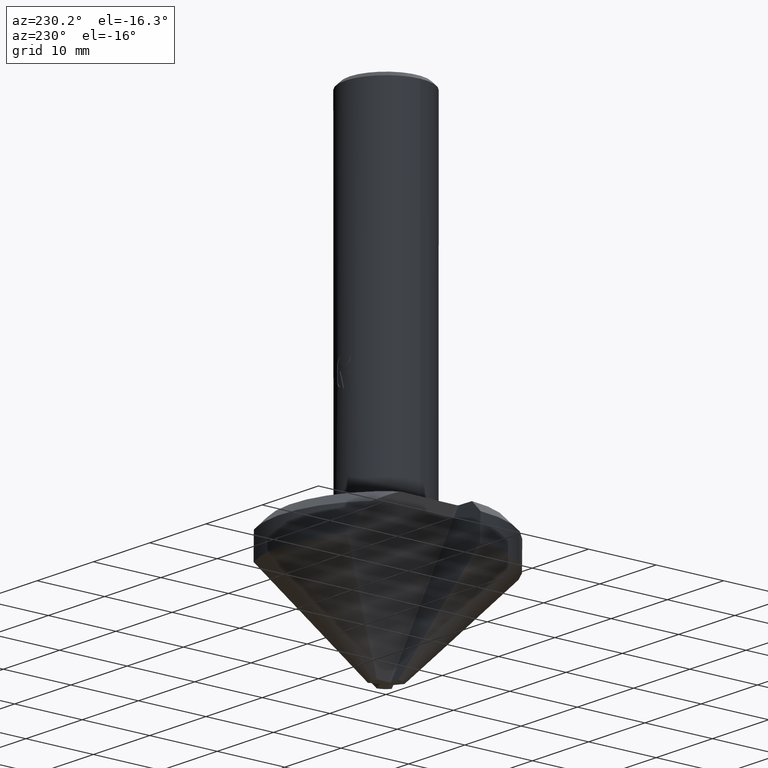
[diagram: clean part render]
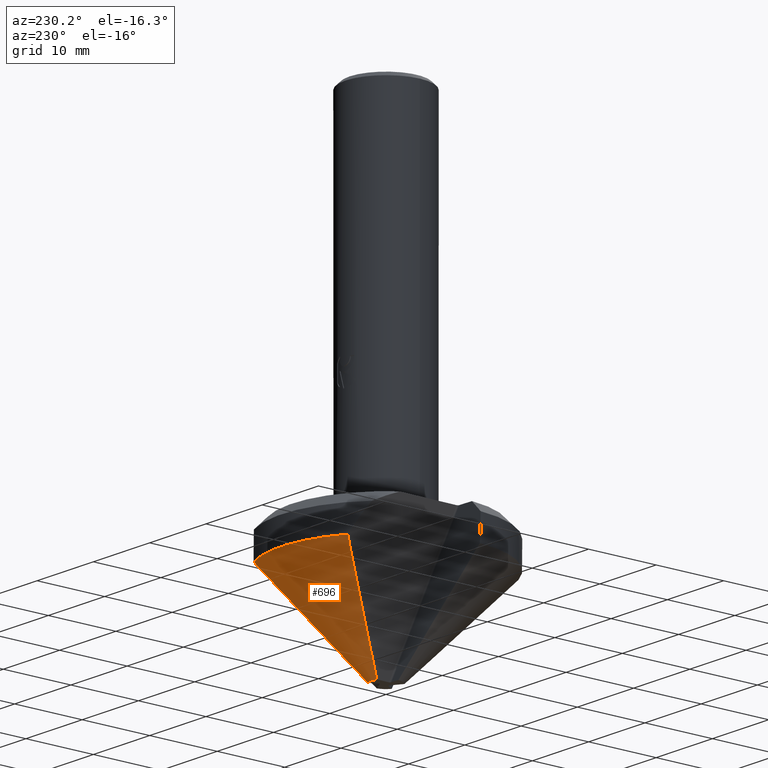
[diagram: same view with one face highlighted and labeled with its STEP entity id]
A machine part, auxiliary view. The second image highlights one B-rep face of the part: STEP entity #696.
In plain terms, the highlighted conical surface has half-angle 45 deg.
Its self-contained STEP definition (entity closure, byte-faithful):
#420=VERTEX_POINT('',#1178);
#452=VERTEX_POINT('',#1212);
#550=EDGE_CURVE('',#1064,#932,#1319,.T.);
#656=EDGE_CURVE('',#1064,#420,#1434,.T.);
#696=ADVANCED_FACE('',(#1477),#1478,.T.);
#722=EDGE_CURVE('',#452,#932,#1507,.T.);
#932=VERTEX_POINT('',#1735);
#984=EDGE_CURVE('',#420,#452,#1793,.T.);
#1064=VERTEX_POINT('',#1879);
#1178=CARTESIAN_POINT('',(-8.62602678301135,12.8779525522798,-57.6));
#1212=CARTESIAN_POINT('',(6.86001409771061,13.8992879882105,-57.6));
#1319=CIRCLE('',#2328,2.1);
#1434=(B_SPLINE_CURVE(2,(#2570,#2571,#2572),.UNSPECIFIED.,.F.,.F.)B_SPLINE_CURVE_WITH_KNOTS((3,3),(0.0,18.9968479206675),.UNSPECIFIED.)RATIONAL_B_SPLINE_CURVE((1.0,1.46457814446262,1.0))BOUNDED_CURVE()REPRESENTATION_ITEM('')GEOMETRIC_REPRESENTATION_ITEM()CURVE());
#1477=FACE_OUTER_BOUND('',#2635,.T.);
#1478=CONICAL_SURFACE('',#2636,8.8,0.785398163397448);
#1507=(B_SPLINE_CURVE(2,(#2689,#2690,#2691),.UNSPECIFIED.,.F.,.F.)B_SPLINE_CURVE_WITH_KNOTS((3,3),(0.0,18.9512372147147),.UNSPECIFIED.)RATIONAL_B_SPLINE_CURVE((1.0,1.54199393858499,1.0))BOUNDED_CURVE()REPRESENTATION_ITEM('')GEOMETRIC_REPRESENTATION_ITEM()CURVE());
#1735=CARTESIAN_POINT('',(0.985581936125735,1.85435386244984,-71.0));
#1793=CIRCLE('',#3392,15.5);
#1879=CARTESIAN_POINT('',(-0.734623106566587,1.967315147936,-71.0));
#2328=AXIS2_PLACEMENT_3D('',#3986,#3987,#3988);
#2570=CARTESIAN_POINT('',(-0.734623106566588,1.967315147936,-71.0));
#2571=CARTESIAN_POINT('',(-1.77734749505873,3.46640128626992,-69.2308646202038));
#2572=CARTESIAN_POINT('',(-8.62602678301136,12.8779525522798,-57.6));
#2635=EDGE_LOOP('',(#4168,#4169,#4170,#4171));
#2636=AXIS2_PLACEMENT_3D('',#4172,#4173,#4174);
#2689=CARTESIAN_POINT('',(6.86001409771061,13.8992879882105,-57.6));
#2690=CARTESIAN_POINT('',(1.68718254033752,3.29284901421316,-69.4004933701625));
#2691=CARTESIAN_POINT('',(0.985581936125735,1.85435386244984,-71.0));
#3392=AXIS2_PLACEMENT_3D('',#4506,#4507,#4508);
#3986=CARTESIAN_POINT('',(0.0,0.0,-71.0));
#3987=DIRECTION('',(0.0,0.0,-1.0));
#3988=DIRECTION('',(-1.0,0.0,0.0));
#4168=ORIENTED_EDGE('',*,*,#656,.T.);
#4169=ORIENTED_EDGE('',*,*,#984,.T.);
#4170=ORIENTED_EDGE('',*,*,#722,.T.);
#4171=ORIENTED_EDGE('',*,*,#550,.F.);
#4172=CARTESIAN_POINT('',(0.0,0.0,-64.3));
#4173=DIRECTION('',(-0.0,-0.0,1.0));
#4174=DIRECTION('',(-1.0,0.0,0.0));
#4506=CARTESIAN_POINT('',(0.0,0.0,-57.6));
#4507=DIRECTION('',(0.0,0.0,-1.0));
#4508=DIRECTION('',(-1.0,0.0,0.0));